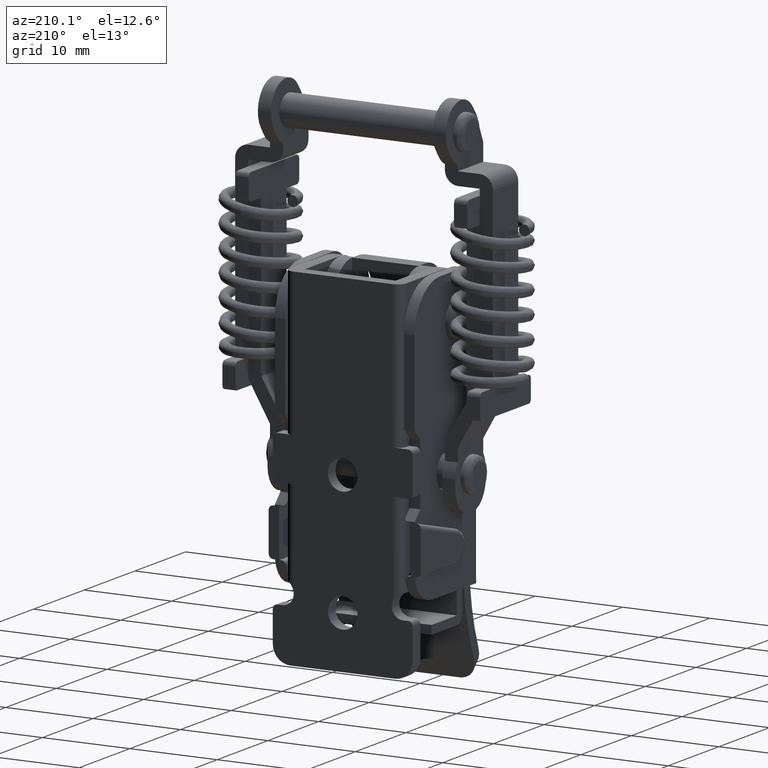
[diagram: clean part render]
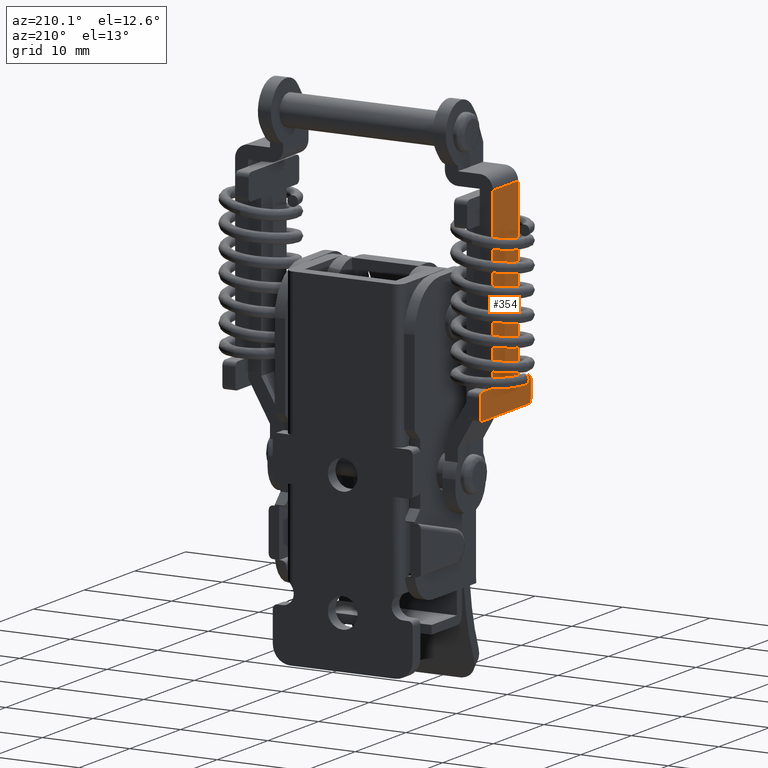
[diagram: same view with one face highlighted and labeled with its STEP entity id]
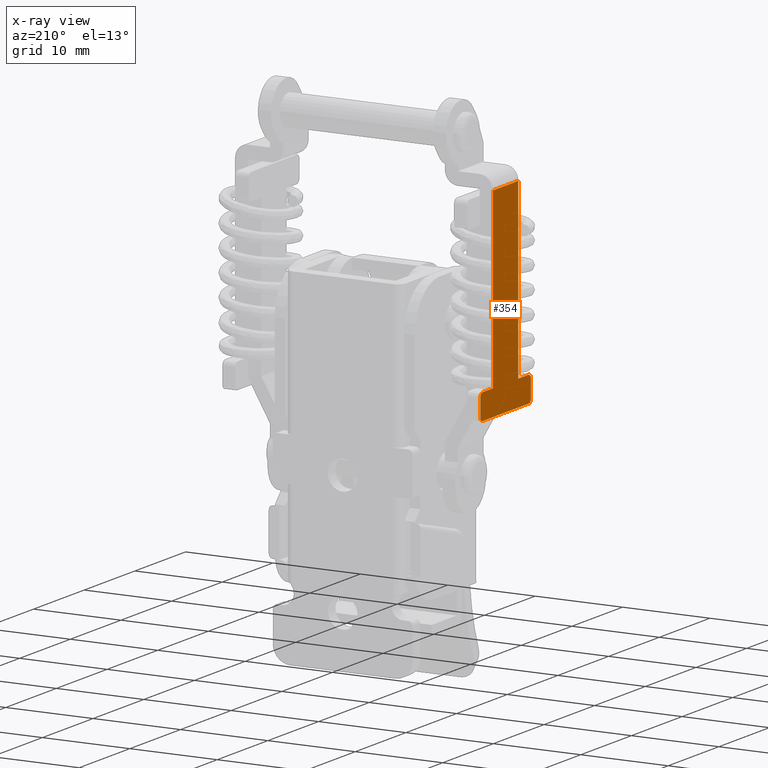
[diagram: x-ray of the same camera — body ghosted, the highlighted face saturated]
A machine part, auxiliary view. The second image highlights one B-rep face of the part: STEP entity #354.
The next image is the same camera in x-ray: the body ghosted, the highlighted face saturated — about 0% of this face is hidden behind the body in this view.
In plain terms, the highlighted planar face has unit normal (1, 0, 0).
Its self-contained STEP definition (entity closure, byte-faithful):
#354=ADVANCED_FACE('',(#1496),#1495,.F.);
#1495=PLANE('',#4899);
#1496=FACE_OUTER_BOUND('',#4900,.T.);
#4896=CARTESIAN_POINT('',(-1.47500000000E+01,-7.46935938038E+00,-3.00570805865E+00));
#4897=DIRECTION('',(1.00000000000E+00,0.00000000000E+00,0.00000000000E+00));
#4898=DIRECTION('',(0.00000000000E+00,0.00000000000E+00,-1.00000000000E+00));
#4899=AXIS2_PLACEMENT_3D('',#4896,#4897,#4898);
#4900=EDGE_LOOP('',(#8279,#8280,#8281,#8282,#8283,#8284,#8285,#8286,#8287,#8288,#8289,#8290));
#8279=ORIENTED_EDGE('',*,*,#10116,.T.);
#8280=ORIENTED_EDGE('',*,*,#10066,.T.);
#8281=ORIENTED_EDGE('',*,*,#10071,.F.);
#8282=ORIENTED_EDGE('',*,*,#10073,.T.);
#8283=ORIENTED_EDGE('',*,*,#10077,.F.);
#8284=ORIENTED_EDGE('',*,*,#10085,.F.);
#8285=ORIENTED_EDGE('',*,*,#10117,.F.);
#8286=ORIENTED_EDGE('',*,*,#10113,.F.);
#8287=ORIENTED_EDGE('',*,*,#10054,.F.);
#8288=ORIENTED_EDGE('',*,*,#10057,.T.);
#8289=ORIENTED_EDGE('',*,*,#10061,.F.);
#8290=ORIENTED_EDGE('',*,*,#10063,.T.);
#10054=EDGE_CURVE('',#12250,#12257,#12258,.T.);
#10057=EDGE_CURVE('',#12250,#12270,#12278,.T.);
#10061=EDGE_CURVE('',#12297,#12270,#12304,.T.);
#10063=EDGE_CURVE('',#12297,#12310,#12318,.T.);
#10066=EDGE_CURVE('',#12338,#12330,#12339,.T.);
#10071=EDGE_CURVE('',#12365,#12330,#12372,.T.);
#10073=EDGE_CURVE('',#12365,#12378,#12386,.T.);
#10077=EDGE_CURVE('',#12405,#12378,#12412,.T.);
#10085=EDGE_CURVE('',#12461,#12405,#12468,.T.);
#10113=EDGE_CURVE('',#12257,#12656,#12657,.T.);
#10116=EDGE_CURVE('',#12310,#12338,#12676,.T.);
#10117=EDGE_CURVE('',#12656,#12461,#12682,.T.);
#12250=VERTEX_POINT('',#18399);
#12257=VERTEX_POINT('',#18403);
#12258=LINE('',#18404,#18405);
#12270=VERTEX_POINT('',#18410);
#12278=CIRCLE('',#18418,5.00000000000E-01);
#12297=VERTEX_POINT('',#18427);
#12304=LINE('',#18431,#18432);
#12310=VERTEX_POINT('',#18434);
#12318=CIRCLE('',#18442,5.00000000000E-01);
#12330=VERTEX_POINT('',#18447);
#12338=VERTEX_POINT('',#18452);
#12339=CIRCLE('',#18456,5.00000000000E-01);
#12365=VERTEX_POINT('',#18469);
#12372=LINE('',#18473,#18474);
#12378=VERTEX_POINT('',#18476);
#12386=CIRCLE('',#18484,5.00000000000E-01);
#12405=VERTEX_POINT('',#18493);
#12412=LINE('',#18497,#18498);
#12461=VERTEX_POINT('',#18526);
#12468=LINE('',#18531,#18532);
#12656=VERTEX_POINT('',#18643);
#12657=LINE('',#18644,#18645);
#12676=LINE('',#18656,#18657);
#12682=LINE('',#18659,#18660);
#18399=CARTESIAN_POINT('',(-1.47500000000E+01,3.03066007703E+00,-2.53677853222E+01));
#18403=CARTESIAN_POINT('',(-1.47500000000E+01,1.03066008205E+00,-2.53679249489E+01));
#18404=CARTESIAN_POINT('',(-1.47500000000E+01,3.03066007703E+00,-2.53677853247E+01));
#18405=VECTOR('',#18406,1.99999999985E+00);
#18406=DIRECTION('',(0.00000000000E+00,-9.99999997563E-01,-6.98120848560E-05));
#18410=CARTESIAN_POINT('',(-1.47500000000E+01,3.53069498248E+00,-2.58677504144E+01));
#18415=CARTESIAN_POINT('',(-1.47500000000E+01,3.03069498370E+00,-2.58677853210E+01));
#18416=DIRECTION('',(-1.00000000000E+00,-0.00000000000E+00,0.00000000000E+00));
#18417=DIRECTION('',(-0.00000000000E+00,9.99999997563E-01,6.98133335514E-05));
#18418=AXIS2_PLACEMENT_3D('',#18415,#18416,#18417);
#18427=CARTESIAN_POINT('',(-1.47500000000E+01,3.53083460915E+00,-2.78677504103E+01));
#18431=CARTESIAN_POINT('',(-1.47500000000E+01,3.53083460915E+00,-2.78677504103E+01));
#18432=VECTOR('',#18433,2.00000000085E+00);
#18433=DIRECTION('',(0.00000000000E+00,-6.98133335444E-05,9.99999997563E-01));
#18434=CARTESIAN_POINT('',(-1.47500000000E+01,3.27802496995E+00,-2.83024080570E+01));
#18439=CARTESIAN_POINT('',(-1.47500000000E+01,3.03083461036E+00,-2.78677853170E+01));
#18440=DIRECTION('',(-1.00000000000E+00,-0.00000000000E+00,-0.00000000000E+00));
#18441=DIRECTION('',(-0.00000000000E+00,-0.00000000000E+00,1.00000000000E+00));
#18442=AXIS2_PLACEMENT_3D('',#18439,#18440,#18441);
#18447=CARTESIAN_POINT('',(-1.47500000000E+01,-6.46916536688E+00,-2.78684485414E+01));
#18452=CARTESIAN_POINT('',(-1.47500000000E+01,-6.21745721594E+00,-2.83024080570E+01));
#18453=CARTESIAN_POINT('',(-1.47500000000E+01,-5.96916536810E+00,-2.78684136350E+01));
#18454=DIRECTION('',(-1.00000000000E+00,-0.00000000000E+00,-0.00000000000E+00));
#18455=DIRECTION('',(-0.00000000000E+00,-0.00000000000E+00,1.00000000000E+00));
#18456=AXIS2_PLACEMENT_3D('',#18453,#18454,#18455);
#18469=CARTESIAN_POINT('',(-1.47500000000E+01,-6.46930499255E+00,-2.58684485464E+01));
#18473=CARTESIAN_POINT('',(-1.47500000000E+01,-6.46930499255E+00,-2.58684485464E+01));
#18474=VECTOR('',#18475,1.99999999988E+00);
#18475=DIRECTION('',(0.00000000000E+00,6.98128338894E-05,-9.99999997563E-01));
#18476=CARTESIAN_POINT('',(-1.47500000000E+01,-5.96933989866E+00,-2.53684136412E+01));
#18481=CARTESIAN_POINT('',(-1.47500000000E+01,-5.96930499377E+00,-2.58684136400E+01));
#18482=DIRECTION('',(-1.00000000000E+00,-0.00000000000E+00,-0.00000000000E+00));
#18483=DIRECTION('',(-0.00000000000E+00,-0.00000000000E+00,1.00000000000E+00));
#18484=AXIS2_PLACEMENT_3D('',#18481,#18482,#18483);
#18493=CARTESIAN_POINT('',(-1.47500000000E+01,-3.96933990723E+00,-2.53682740177E+01));
#18497=CARTESIAN_POINT('',(-1.47500000000E+01,-3.96933990723E+00,-2.53682740177E+01));
#18498=VECTOR('',#18499,1.99999999630E+00);
#18499=DIRECTION('',(0.00000000000E+00,-9.99999997563E-01,-6.98134491190E-05));
#18526=CARTESIAN_POINT('',(-1.47500000000E+01,-3.97074055768E+00,-5.30540805850E+00));
#18531=CARTESIAN_POINT('',(-1.47500000000E+01,-3.97074055768E+00,-5.30540805850E+00));
#18532=VECTOR('',#18533,2.00628660080E+01);
#18533=DIRECTION('',(0.00000000000E+00,6.98130791735E-05,-9.99999997563E-01));
#18643=CARTESIAN_POINT('',(-1.47500000000E+01,1.02925945456E+00,-5.30540805850E+00));
#18644=CARTESIAN_POINT('',(-1.47500000000E+01,1.03066008205E+00,-2.53679249489E+01));
#18645=VECTOR('',#18646,2.00625169393E+01);
#18646=DIRECTION('',(0.00000000000E+00,-6.98131491643E-05,9.99999997563E-01));
#18656=CARTESIAN_POINT('',(-1.47500000000E+01,3.27802496995E+00,-2.83024080570E+01));
#18657=VECTOR('',#18658,9.49548218588E+00);
#18658=DIRECTION('',(0.00000000000E+00,-1.00000000000E+00,0.00000000000E+00));
#18659=CARTESIAN_POINT('',(-1.47500000000E+01,1.02925945456E+00,-5.30540805850E+00));
#18660=VECTOR('',#18661,5.00000001225E+00);
#18661=DIRECTION('',(0.00000000000E+00,-1.00000000000E+00,0.00000000000E+00));